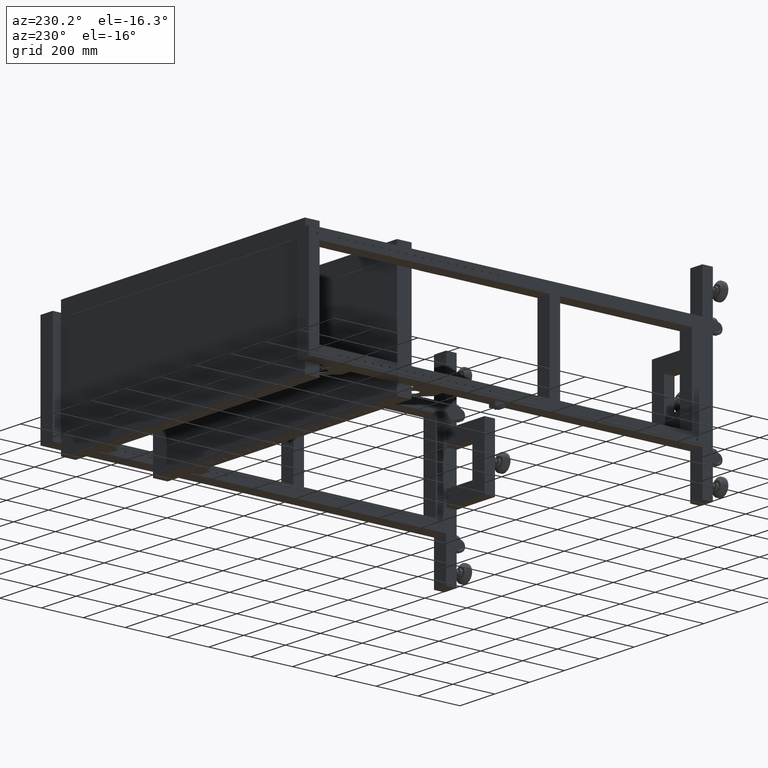
[diagram: clean part render]
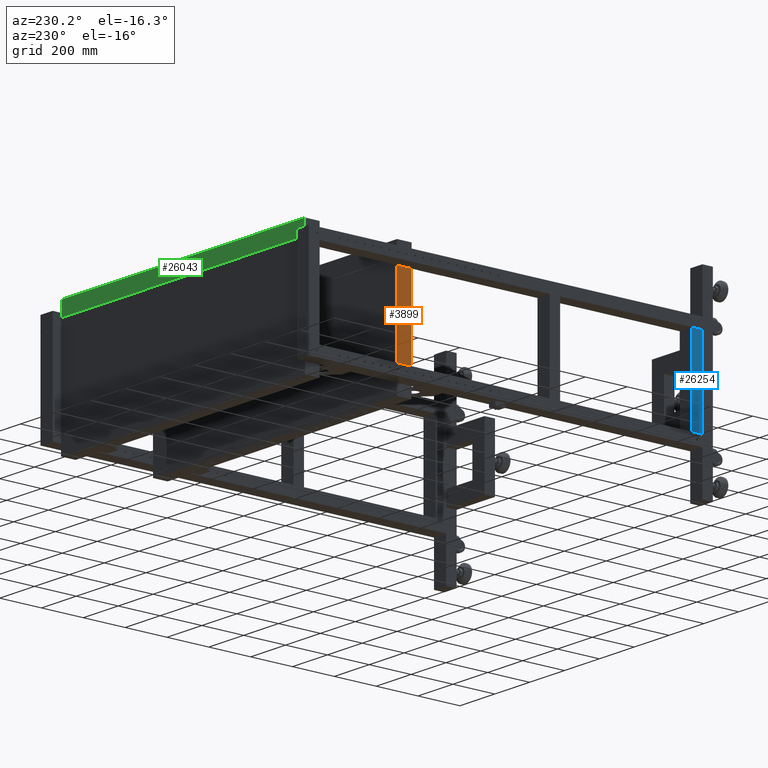
[diagram: same view with three faces highlighted in distinct colors, each labeled with its STEP entity id]
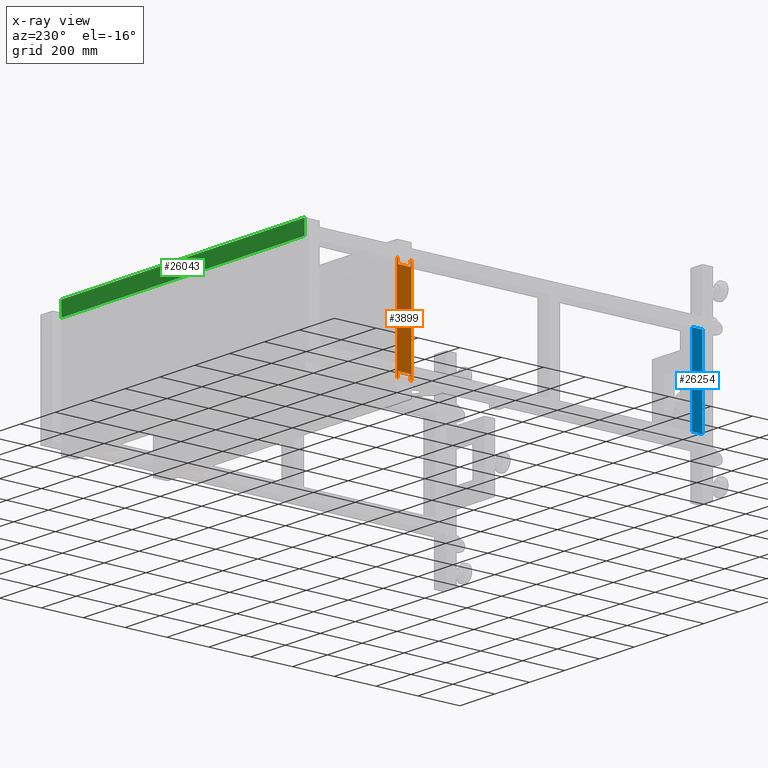
[diagram: x-ray of the same camera — body ghosted, the three highlighted faces saturated]
A machine part, auxiliary view with three faces highlighted in distinct colors.
The next image is the same camera in x-ray (body ghosted, the three faces saturated) — at least one of them is partly hidden behind the body in this view.
Their STEP definitions:

[orange] entity #3899 — the highlighted planar face has unit normal (1, 0, 0).
#173 = LINE ( 'NONE', #48446, #4036 ) ;
#311 = CARTESIAN_POINT ( 'NONE',  ( -1268.172487437185964, 551.9410804020110390, 205.0000000000000853 ) ) ;
#394 = CARTESIAN_POINT ( 'NONE',  ( -1268.172487437185964, 486.9410804020124033, -230.0000000000001137 ) ) ;
#783 = CARTESIAN_POINT ( 'NONE',  ( -1268.172487437185964, 491.9410804020124033, -237.8650255704260701 ) ) ;
#1682 = DIRECTION ( 'NONE',  ( -1.000000000000000078E-15, 1.000000000000000000, 2.999999999999999839E-15 ) ) ;
#2053 = CARTESIAN_POINT ( 'NONE',  ( -1268.172487437185964, 556.9410804020109254, 230.0000000000001137 ) ) ;
#2471 = ORIENTED_EDGE ( 'NONE', *, *, #75310, .F. ) ;
#2674 = ORIENTED_EDGE ( 'NONE', *, *, #42942, .T. ) ;
#3899 = ADVANCED_FACE ( 'NONE', ( #31333 ), #42160, .F. ) ;
#3952 = DIRECTION ( 'NONE',  ( 0.000000000000000000, -2.999999999999999839E-15, 1.000000000000000000 ) ) ;
#4036 = VECTOR ( 'NONE', #12934, 1000.000000000000000 ) ;
#6593 = VERTEX_POINT ( 'NONE', #311 ) ;
#6941 = VERTEX_POINT ( 'NONE', #58803 ) ;
#7941 = LINE ( 'NONE', #783, #9235 ) ;
#8522 = CARTESIAN_POINT ( 'NONE',  ( -1268.172487437185964, 486.9410804020109822, 229.9999999999998863 ) ) ;
#9235 = VECTOR ( 'NONE', #24715, 1000.000000000000000 ) ;
#9528 = VECTOR ( 'NONE', #39352, 1000.000000000000000 ) ;
#9830 = EDGE_CURVE ( 'NONE', #17007, #75403, #7941, .T. ) ;
#10667 = VERTEX_POINT ( 'NONE', #18546 ) ;
#12075 = CARTESIAN_POINT ( 'NONE',  ( -1268.172487437185964, 551.9410804020124033, -237.8650255704258427 ) ) ;
#12609 = ORIENTED_EDGE ( 'NONE', *, *, #49062, .T. ) ;
#12654 = DIRECTION ( 'NONE',  ( -1.000000000000000078E-15, 1.000000000000000000, 2.999999999999999839E-15 ) ) ;
#12934 = DIRECTION ( 'NONE',  ( -1.000000000000000078E-15, 1.000000000000000000, 2.999999999999999839E-15 ) ) ;
#13145 = DIRECTION ( 'NONE',  ( 1.000000000000000078E-15, -1.000000000000000000, -2.999999999999999839E-15 ) ) ;
#13352 = DIRECTION ( 'NONE',  ( -1.000000000000000078E-15, 1.000000000000000000, 2.999999999999999839E-15 ) ) ;
#15007 = EDGE_CURVE ( 'NONE', #51738, #6593, #31459, .T. ) ;
#17007 = VERTEX_POINT ( 'NONE', #78291 ) ;
#18038 = DIRECTION ( 'NONE',  ( 0.000000000000000000, 2.999999999999999839E-15, -1.000000000000000000 ) ) ;
#18546 = CARTESIAN_POINT ( 'NONE',  ( -1268.172487437185964, 486.9410804020124033, -230.0000000000001137 ) ) ;
#18744 = EDGE_CURVE ( 'NONE', #10667, #17007, #73781, .T. ) ;
#19384 = DIRECTION ( 'NONE',  ( -1.000000000000000078E-15, 1.000000000000000000, 2.999999999999999839E-15 ) ) ;
#19471 = DIRECTION ( 'NONE',  ( 1.319581717850421866E-31, -3.131958171785041999E-15, 1.000000000000000000 ) ) ;
#19923 = CARTESIAN_POINT ( 'NONE',  ( -1268.172487437185964, 486.9410804020124033, -230.0000000000001137 ) ) ;
#20720 = ORIENTED_EDGE ( 'NONE', *, *, #65918, .F. ) ;
#22547 = VECTOR ( 'NONE', #18038, 1000.000000000000000 ) ;
#23587 = VERTEX_POINT ( 'NONE', #33995 ) ;
#23812 = CARTESIAN_POINT ( 'NONE',  ( -1268.172487437185964, 486.9410804020124033, -230.0000000000001137 ) ) ;
#23878 = CARTESIAN_POINT ( 'NONE',  ( -1268.172487437185964, 491.9410804020109822, 237.8650255704254448 ) ) ;
#23972 = AXIS2_PLACEMENT_3D ( 'NONE', #72490, #37350, #19384 ) ;
#24666 = LINE ( 'NONE', #23878, #70348 ) ;
#24715 = DIRECTION ( 'NONE',  ( -1.319581717850421866E-31, -2.868041828214957678E-15, 1.000000000000000000 ) ) ;
#25236 = VERTEX_POINT ( 'NONE', #27802 ) ;
#25413 = VERTEX_POINT ( 'NONE', #72097 ) ;
#26901 = ORIENTED_EDGE ( 'NONE', *, *, #33015, .T. ) ;
#27802 = CARTESIAN_POINT ( 'NONE',  ( -1268.172487437185964, 551.9410804020124033, -229.9999999999998863 ) ) ;
#28662 = CARTESIAN_POINT ( 'NONE',  ( -1268.172487437185964, 556.9410804020124033, -229.9999999999998863 ) ) ;
#29308 = VECTOR ( 'NONE', #13145, 1000.000000000000000 ) ;
#31128 = ORIENTED_EDGE ( 'NONE', *, *, #9830, .F. ) ;
#31333 = FACE_OUTER_BOUND ( 'NONE', #55154, .T. ) ;
#31459 = LINE ( 'NONE', #76435, #9528 ) ;
#31771 = VECTOR ( 'NONE', #3952, 1000.000000000000000 ) ;
#32629 = ORIENTED_EDGE ( 'NONE', *, *, #71529, .F. ) ;
#33015 = EDGE_CURVE ( 'NONE', #23587, #65809, #34449, .T. ) ;
#33995 = CARTESIAN_POINT ( 'NONE',  ( -1268.172487437185964, 486.9410804020109822, 229.9999999999998863 ) ) ;
#34449 = LINE ( 'NONE', #61140, #36778 ) ;
#36686 = DIRECTION ( 'NONE',  ( -1.000000000000000078E-15, 1.000000000000000000, 2.999999999999999839E-15 ) ) ;
#36778 = VECTOR ( 'NONE', #1682, 1000.000000000000000 ) ;
#37350 = DIRECTION ( 'NONE',  ( 1.000000000000000000, 1.000000000000000078E-15, 2.999999999999999900E-30 ) ) ;
#37964 = EDGE_CURVE ( 'NONE', #75403, #6941, #173, .T. ) ;
#39352 = DIRECTION ( 'NONE',  ( 0.000000000000000000, 2.999999999999999839E-15, -1.000000000000000000 ) ) ;
#39506 = VECTOR ( 'NONE', #12654, 1000.000000000000000 ) ;
#39514 = ORIENTED_EDGE ( 'NONE', *, *, #57111, .F. ) ;
#40318 = VECTOR ( 'NONE', #13352, 1000.000000000000000 ) ;
#42160 = PLANE ( 'NONE',  #23972 ) ;
#42942 = EDGE_CURVE ( 'NONE', #51738, #72906, #68390, .T. ) ;
#43203 = VERTEX_POINT ( 'NONE', #77118 ) ;
#43906 = ORIENTED_EDGE ( 'NONE', *, *, #18744, .F. ) ;
#48446 = CARTESIAN_POINT ( 'NONE',  ( -1268.172487437185964, 551.9410804020124033, -204.9999999999998863 ) ) ;
#49062 = EDGE_CURVE ( 'NONE', #10667, #23587, #61708, .T. ) ;
#50249 = LINE ( 'NONE', #19923, #39506 ) ;
#51738 = VERTEX_POINT ( 'NONE', #67129 ) ;
#52699 = ORIENTED_EDGE ( 'NONE', *, *, #74539, .F. ) ;
#55154 = EDGE_LOOP ( 'NONE', ( #52699, #32629, #73172, #31128, #43906, #12609, #26901, #20720, #39514, #73687, #2674, #2471 ) ) ;
#56185 = CARTESIAN_POINT ( 'NONE',  ( -1268.172487437185964, 551.9410804020110390, 205.0000000000000853 ) ) ;
#56543 = VECTOR ( 'NONE', #36686, 1000.000000000000000 ) ;
#57111 = EDGE_CURVE ( 'NONE', #6593, #25413, #60617, .T. ) ;
#58803 = CARTESIAN_POINT ( 'NONE',  ( -1268.172487437185964, 551.9410804020124033, -204.9999999999998863 ) ) ;
#60527 = DIRECTION ( 'NONE',  ( 0.000000000000000000, -2.999999999999999839E-15, 1.000000000000000000 ) ) ;
#60617 = LINE ( 'NONE', #56185, #29308 ) ;
#61140 = CARTESIAN_POINT ( 'NONE',  ( -1268.172487437185964, 486.9410804020109822, 229.9999999999998863 ) ) ;
#61708 = LINE ( 'NONE', #23812, #66452 ) ;
#61743 = CARTESIAN_POINT ( 'NONE',  ( -1268.172487437185964, 491.9410804020122896, -205.0000000000000853 ) ) ;
#65809 = VERTEX_POINT ( 'NONE', #74131 ) ;
#65918 = EDGE_CURVE ( 'NONE', #25413, #65809, #24666, .T. ) ;
#66452 = VECTOR ( 'NONE', #60527, 1000.000000000000000 ) ;
#67129 = CARTESIAN_POINT ( 'NONE',  ( -1268.172487437185964, 551.9410804020110390, 230.0000000000000853 ) ) ;
#67514 = LINE ( 'NONE', #12075, #22547 ) ;
#68390 = LINE ( 'NONE', #8522, #40318 ) ;
#70348 = VECTOR ( 'NONE', #19471, 1000.000000000000000 ) ;
#71372 = LINE ( 'NONE', #28662, #31771 ) ;
#71529 = EDGE_CURVE ( 'NONE', #6941, #25236, #67514, .T. ) ;
#72097 = CARTESIAN_POINT ( 'NONE',  ( -1268.172487437185964, 491.9410804020110390, 204.9999999999999147 ) ) ;
#72490 = CARTESIAN_POINT ( 'NONE',  ( -1268.172487437185964, 486.9410804020124033, -230.0000000000001137 ) ) ;
#72906 = VERTEX_POINT ( 'NONE', #2053 ) ;
#73172 = ORIENTED_EDGE ( 'NONE', *, *, #37964, .F. ) ;
#73687 = ORIENTED_EDGE ( 'NONE', *, *, #15007, .F. ) ;
#73781 = LINE ( 'NONE', #394, #56543 ) ;
#74131 = CARTESIAN_POINT ( 'NONE',  ( -1268.172487437185964, 491.9410804020110390, 229.9999999999999147 ) ) ;
#74539 = EDGE_CURVE ( 'NONE', #25236, #43203, #50249, .T. ) ;
#75310 = EDGE_CURVE ( 'NONE', #43203, #72906, #71372, .T. ) ;
#75403 = VERTEX_POINT ( 'NONE', #61743 ) ;
#76435 = CARTESIAN_POINT ( 'NONE',  ( -1268.172487437185964, 551.9410804020110390, 237.8650255704256153 ) ) ;
#77118 = CARTESIAN_POINT ( 'NONE',  ( -1268.172487437185964, 556.9410804020124033, -229.9999999999998863 ) ) ;
#78291 = CARTESIAN_POINT ( 'NONE',  ( -1268.172487437185964, 491.9410804020124033, -230.0000000000001137 ) ) ;

[blue] entity #26254 — the highlighted planar face has unit normal (1, 0, 0).
#63 = FACE_OUTER_BOUND ( 'NONE', #6669, .T. ) ;
#3495 = VECTOR ( 'NONE', #48520, 1000.000000000000000 ) ;
#5260 = DIRECTION ( 'NONE',  ( -2.775557561562890365E-16, 1.000000000000000000, 0.000000000000000000 ) ) ;
#6610 = ORIENTED_EDGE ( 'NONE', *, *, #19445, .F. ) ;
#6669 = EDGE_LOOP ( 'NONE', ( #51034, #6610, #7418, #51054 ) ) ;
#7310 = VERTEX_POINT ( 'NONE', #77444 ) ;
#7418 = ORIENTED_EDGE ( 'NONE', *, *, #48846, .F. ) ;
#8318 = DIRECTION ( 'NONE',  ( 2.775557561562890365E-16, -1.000000000000000000, 0.000000000000000000 ) ) ;
#12093 = LINE ( 'NONE', #72333, #60270 ) ;
#12507 = EDGE_CURVE ( 'NONE', #35678, #27757, #28763, .T. ) ;
#15976 = CARTESIAN_POINT ( 'NONE',  ( -1338.172487437185055, -794.5589195979878241, -200.0000000000000000 ) ) ;
#19445 = EDGE_CURVE ( 'NONE', #7310, #72324, #12093, .T. ) ;
#25428 = EDGE_CURVE ( 'NONE', #27757, #72324, #78836, .T. ) ;
#26254 = ADVANCED_FACE ( 'NONE', ( #63 ), #29967, .F. ) ;
#27757 = VERTEX_POINT ( 'NONE', #15976 ) ;
#28763 = LINE ( 'NONE', #64701, #45349 ) ;
#29967 = PLANE ( 'NONE',  #46933 ) ;
#33018 = LINE ( 'NONE', #52162, #72820 ) ;
#35678 = VERTEX_POINT ( 'NONE', #58836 ) ;
#40822 = DIRECTION ( 'NONE',  ( 0.000000000000000000, 0.000000000000000000, -1.000000000000000000 ) ) ;
#41955 = CARTESIAN_POINT ( 'NONE',  ( -1338.172487437185055, -844.5589195979879378, 200.0000000000000000 ) ) ;
#45349 = VECTOR ( 'NONE', #70694, 1000.000000000000000 ) ;
#46933 = AXIS2_PLACEMENT_3D ( 'NONE', #41955, #66315, #5260 ) ;
#48520 = DIRECTION ( 'NONE',  ( 2.775557561562890365E-16, -1.000000000000000000, 0.000000000000000000 ) ) ;
#48846 = EDGE_CURVE ( 'NONE', #35678, #7310, #33018, .T. ) ;
#49237 = CARTESIAN_POINT ( 'NONE',  ( -1338.172487437185055, -844.5589195979879378, -200.0000000000000000 ) ) ;
#51034 = ORIENTED_EDGE ( 'NONE', *, *, #25428, .T. ) ;
#51054 = ORIENTED_EDGE ( 'NONE', *, *, #12507, .T. ) ;
#52162 = CARTESIAN_POINT ( 'NONE',  ( -1338.172487437185055, -844.5589195979879378, 200.0000000000000000 ) ) ;
#54116 = CARTESIAN_POINT ( 'NONE',  ( -1338.172487437185055, -844.5589195979879378, -200.0000000000000000 ) ) ;
#58836 = CARTESIAN_POINT ( 'NONE',  ( -1338.172487437185055, -794.5589195979878241, 200.0000000000000000 ) ) ;
#60270 = VECTOR ( 'NONE', #40822, 1000.000000000000000 ) ;
#64701 = CARTESIAN_POINT ( 'NONE',  ( -1338.172487437185055, -794.5589195979878241, 200.0000000000000000 ) ) ;
#66315 = DIRECTION ( 'NONE',  ( 1.000000000000000000, 2.775557561562890365E-16, 0.000000000000000000 ) ) ;
#70694 = DIRECTION ( 'NONE',  ( 0.000000000000000000, 0.000000000000000000, -1.000000000000000000 ) ) ;
#72324 = VERTEX_POINT ( 'NONE', #49237 ) ;
#72333 = CARTESIAN_POINT ( 'NONE',  ( -1338.172487437185055, -844.5589195979879378, 200.0000000000000000 ) ) ;
#72820 = VECTOR ( 'NONE', #8318, 1000.000000000000000 ) ;
#77444 = CARTESIAN_POINT ( 'NONE',  ( -1338.172487437185055, -844.5589195979879378, 200.0000000000000000 ) ) ;
#78836 = LINE ( 'NONE', #54116, #3495 ) ;

[green] entity #26043 — the highlighted planar face has unit normal (0, -1, -0).
#2940 = VECTOR ( 'NONE', #77521, 1000.000000000000000 ) ;
#6647 = EDGE_CURVE ( 'NONE', #32385, #36864, #60564, .T. ) ;
#8002 = CARTESIAN_POINT ( 'NONE',  ( 129.8275125628156559, 996.9410804020122896, 230.0000000000011653 ) ) ;
#12345 = CARTESIAN_POINT ( 'NONE',  ( 129.8275125628156559, 996.9410804020122896, 230.0000000000011653 ) ) ;
#13323 = CARTESIAN_POINT ( 'NONE',  ( -1266.172487437185964, 996.9410804020120622, 230.0000000000011653 ) ) ;
#18172 = ORIENTED_EDGE ( 'NONE', *, *, #56977, .T. ) ;
#18652 = DIRECTION ( 'NONE',  ( 0.000000000000000000, 4.000000000000000311E-15, -1.000000000000000000 ) ) ;
#19252 = ORIENTED_EDGE ( 'NONE', *, *, #6647, .F. ) ;
#19429 = EDGE_CURVE ( 'NONE', #37483, #32385, #53970, .T. ) ;
#26043 = ADVANCED_FACE ( 'NONE', ( #68760 ), #32401, .F. ) ;
#28883 = ORIENTED_EDGE ( 'NONE', *, *, #73104, .T. ) ;
#29481 = DIRECTION ( 'NONE',  ( -1.000000000000000000, -2.768038506440323819E-16, 0.000000000000000000 ) ) ;
#29909 = CARTESIAN_POINT ( 'NONE',  ( 129.8275125628156559, 996.9410804020122896, 230.0000000000011653 ) ) ;
#32385 = VERTEX_POINT ( 'NONE', #73799 ) ;
#32401 = PLANE ( 'NONE',  #34152 ) ;
#34152 = AXIS2_PLACEMENT_3D ( 'NONE', #62753, #45985, #39213 ) ;
#35518 = DIRECTION ( 'NONE',  ( -1.107215402576129614E-30, 4.000000000000000311E-15, -1.000000000000000000 ) ) ;
#36864 = VERTEX_POINT ( 'NONE', #13323 ) ;
#37483 = VERTEX_POINT ( 'NONE', #52953 ) ;
#39213 = DIRECTION ( 'NONE',  ( -1.000000000000000000, -2.768038506440323819E-16, 0.000000000000000000 ) ) ;
#42000 = CARTESIAN_POINT ( 'NONE',  ( 129.8275125628156559, 996.9410804020120622, 300.0000000000011937 ) ) ;
#42614 = CARTESIAN_POINT ( 'NONE',  ( -1266.172487437185964, 996.9410804020120622, 230.0000000000011653 ) ) ;
#45985 = DIRECTION ( 'NONE',  ( 2.768038506440323819E-16, -1.000000000000000000, -4.000000000000000311E-15 ) ) ;
#46967 = VECTOR ( 'NONE', #35518, 1000.000000000000000 ) ;
#47992 = ORIENTED_EDGE ( 'NONE', *, *, #19429, .F. ) ;
#48642 = LINE ( 'NONE', #12345, #65060 ) ;
#52953 = CARTESIAN_POINT ( 'NONE',  ( 129.8275125628156559, 996.9410804020120622, 300.0000000000011937 ) ) ;
#53970 = LINE ( 'NONE', #42000, #2940 ) ;
#55427 = LINE ( 'NONE', #29909, #46967 ) ;
#56977 = EDGE_CURVE ( 'NONE', #66871, #36864, #48642, .T. ) ;
#60564 = LINE ( 'NONE', #42614, #71532 ) ;
#62753 = CARTESIAN_POINT ( 'NONE',  ( 129.8275125628156559, 996.9410804020122896, 230.0000000000011653 ) ) ;
#65060 = VECTOR ( 'NONE', #29481, 1000.000000000000000 ) ;
#66871 = VERTEX_POINT ( 'NONE', #8002 ) ;
#68760 = FACE_OUTER_BOUND ( 'NONE', #76884, .T. ) ;
#71532 = VECTOR ( 'NONE', #18652, 1000.000000000000000 ) ;
#73104 = EDGE_CURVE ( 'NONE', #37483, #66871, #55427, .T. ) ;
#73799 = CARTESIAN_POINT ( 'NONE',  ( -1266.172487437185964, 996.9410804020118348, 300.0000000000011937 ) ) ;
#76884 = EDGE_LOOP ( 'NONE', ( #47992, #28883, #18172, #19252 ) ) ;
#77521 = DIRECTION ( 'NONE',  ( -1.000000000000000000, -2.768038506440323819E-16, 0.000000000000000000 ) ) ;